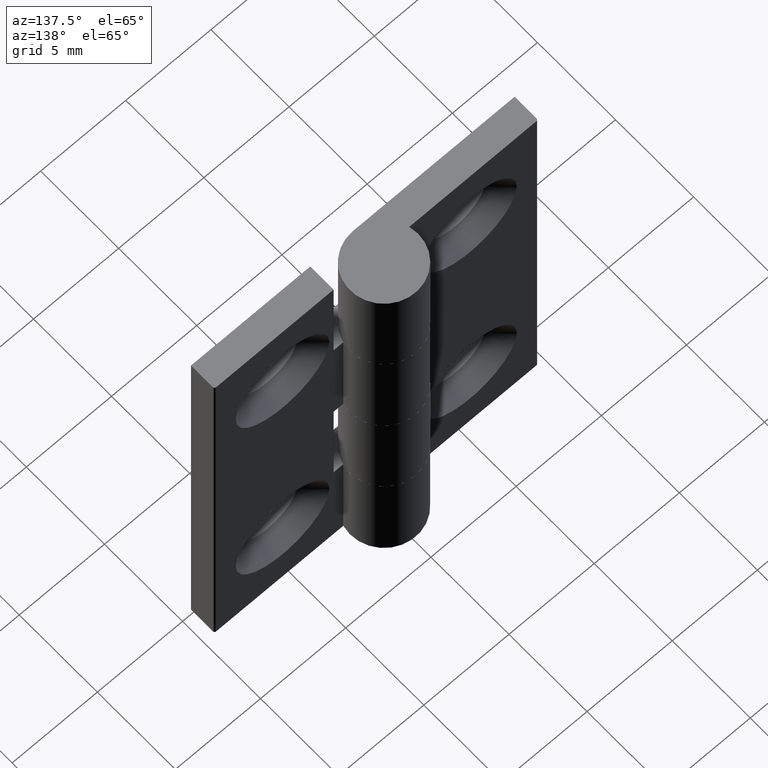
[diagram: clean part render]
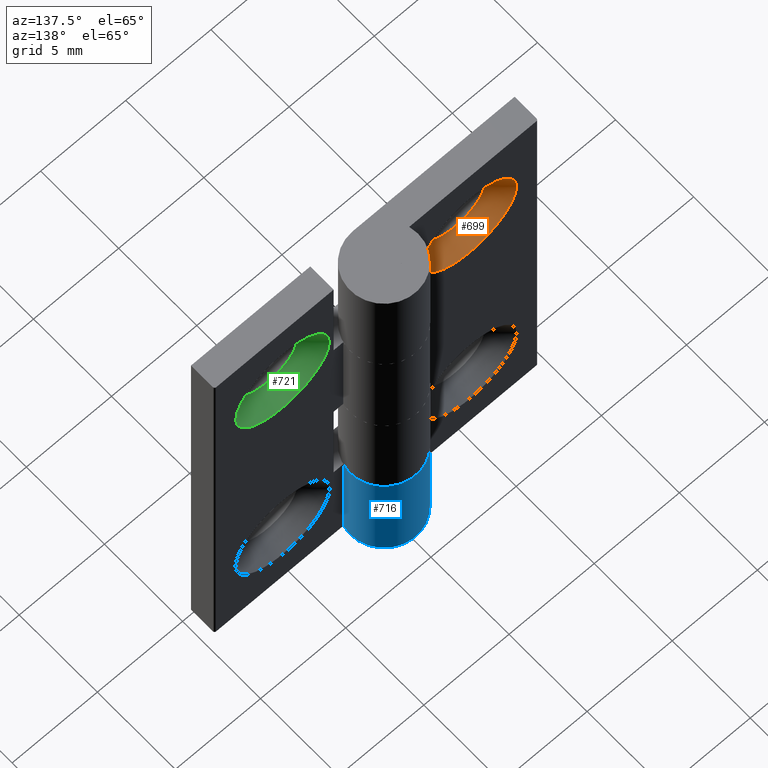
[diagram: same view with three faces highlighted in distinct colors, each labeled with its STEP entity id]
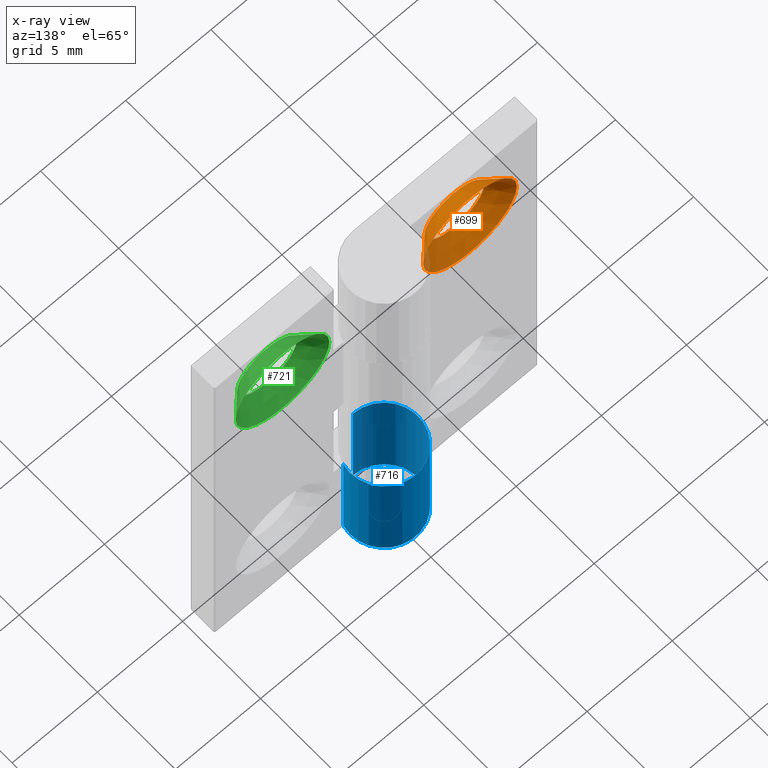
[diagram: x-ray of the same camera — body ghosted, the three highlighted faces saturated]
A machine part, auxiliary view with three faces highlighted in distinct colors.
The next image is the same camera in x-ray (body ghosted, the three faces saturated) — at least one of them is partly hidden behind the body in this view.
Their STEP definitions:

[orange] entity #699 — the highlighted conical surface has half-angle 45 deg.
#35=CONICAL_SURFACE('',#755,2.25,45.);
#60=FACE_BOUND('',#176,.T.);
#89=CIRCLE('',#745,2.75);
#94=CIRCLE('',#756,1.75);
#128=FACE_OUTER_BOUND('',#175,.T.);
#175=EDGE_LOOP('',(#544));
#176=EDGE_LOOP('',(#545));
#356=VERTEX_POINT('',#1084);
#362=VERTEX_POINT('',#1106);
#427=EDGE_CURVE('',#356,#356,#89,.T.);
#437=EDGE_CURVE('',#362,#362,#94,.T.);
#544=ORIENTED_EDGE('',*,*,#427,.F.);
#545=ORIENTED_EDGE('',*,*,#437,.F.);
#699=ADVANCED_FACE('',(#128,#60),#35,.F.);
#745=AXIS2_PLACEMENT_3D('',#1085,#859,#860);
#755=AXIS2_PLACEMENT_3D('',#1105,#884,#885);
#756=AXIS2_PLACEMENT_3D('',#1107,#886,#887);
#859=DIRECTION('center_axis',(0.,-1.,0.));
#860=DIRECTION('ref_axis',(1.,0.,0.));
#884=DIRECTION('center_axis',(0.,1.,0.));
#885=DIRECTION('ref_axis',(1.,0.,0.));
#886=DIRECTION('center_axis',(0.,1.,0.));
#887=DIRECTION('ref_axis',(1.,0.,0.));
#1084=CARTESIAN_POINT('',(-2.75,1.5,7.5));
#1085=CARTESIAN_POINT('Origin',(-5.5,1.5,7.5));
#1105=CARTESIAN_POINT('Origin',(-5.5,0.999999999999999,7.5));
#1106=CARTESIAN_POINT('',(-3.75,0.499999999999999,7.5));
#1107=CARTESIAN_POINT('Origin',(-5.5,0.500000000000003,7.5));

[blue] entity #716 — the highlighted cylindrical surface (partial cylindrical patch) has radius 2 mm, axis along (0, 0, 1).
#47=CYLINDRICAL_SURFACE('',#788,2.);
#105=CIRCLE('',#782,2.);
#109=CIRCLE('',#789,2.);
#145=FACE_OUTER_BOUND('',#205,.T.);
#205=EDGE_LOOP('',(#624,#625,#626,#627));
#277=LINE('',#1191,#331);
#279=LINE('',#1200,#333);
#331=VECTOR('',#971,6.3);
#333=VECTOR('',#981,6.3);
#386=VERTEX_POINT('',#1175);
#388=VERTEX_POINT('',#1178);
#391=VERTEX_POINT('',#1189);
#394=VERTEX_POINT('',#1198);
#468=EDGE_CURVE('',#388,#386,#105,.T.);
#475=EDGE_CURVE('',#386,#391,#277,.T.);
#479=EDGE_CURVE('',#394,#391,#109,.T.);
#480=EDGE_CURVE('',#394,#388,#279,.T.);
#624=ORIENTED_EDGE('',*,*,#468,.T.);
#625=ORIENTED_EDGE('',*,*,#475,.T.);
#626=ORIENTED_EDGE('',*,*,#479,.F.);
#627=ORIENTED_EDGE('',*,*,#480,.T.);
#716=ADVANCED_FACE('',(#145),#47,.T.);
#782=AXIS2_PLACEMENT_3D('',#1179,#958,#959);
#788=AXIS2_PLACEMENT_3D('',#1197,#977,#978);
#789=AXIS2_PLACEMENT_3D('',#1199,#979,#980);
#958=DIRECTION('center_axis',(0.,0.,-1.));
#959=DIRECTION('ref_axis',(-1.,0.,0.));
#971=DIRECTION('',(0.,0.,-1.));
#977=DIRECTION('center_axis',(0.,0.,1.));
#978=DIRECTION('ref_axis',(-1.,0.,0.));
#979=DIRECTION('center_axis',(0.,0.,-1.));
#980=DIRECTION('ref_axis',(-1.,0.,0.));
#981=DIRECTION('',(0.,0.,1.));
#1175=CARTESIAN_POINT('',(1.9364916731037,1.5,-6.2));
#1178=CARTESIAN_POINT('',(-2.46519032881566E-31,0.,-6.2));
#1179=CARTESIAN_POINT('Origin',(-3.33066907387547E-15,2.,-6.2));
#1189=CARTESIAN_POINT('',(1.9364916731037,1.5,-12.5));
#1191=CARTESIAN_POINT('',(1.9364916731037,1.5,0.));
#1197=CARTESIAN_POINT('Origin',(-3.33066907387547E-15,2.,0.));
#1198=CARTESIAN_POINT('',(0.,0.,-12.5));
#1199=CARTESIAN_POINT('Origin',(-3.33066907387547E-15,2.,-12.5));
#1200=CARTESIAN_POINT('',(-2.46519032881566E-31,0.,0.));

[green] entity #721 — the highlighted conical surface has half-angle 45 deg.
#38=CONICAL_SURFACE('',#797,2.25,45.);
#78=FACE_BOUND('',#216,.T.);
#107=CIRCLE('',#786,2.75);
#113=CIRCLE('',#798,1.75);
#150=FACE_OUTER_BOUND('',#215,.T.);
#215=EDGE_LOOP('',(#646));
#216=EDGE_LOOP('',(#647));
#392=VERTEX_POINT('',#1193);
#398=VERTEX_POINT('',#1214);
#477=EDGE_CURVE('',#392,#392,#107,.T.);
#486=EDGE_CURVE('',#398,#398,#113,.T.);
#646=ORIENTED_EDGE('',*,*,#477,.F.);
#647=ORIENTED_EDGE('',*,*,#486,.F.);
#721=ADVANCED_FACE('',(#150,#78),#38,.F.);
#786=AXIS2_PLACEMENT_3D('',#1194,#973,#974);
#797=AXIS2_PLACEMENT_3D('',#1213,#998,#999);
#798=AXIS2_PLACEMENT_3D('',#1215,#1000,#1001);
#973=DIRECTION('center_axis',(1.1686558153949E-16,-1.,0.));
#974=DIRECTION('ref_axis',(1.,1.1686558153949E-16,0.));
#998=DIRECTION('center_axis',(-1.1686558153949E-16,1.,0.));
#999=DIRECTION('ref_axis',(1.,1.1686558153949E-16,0.));
#1000=DIRECTION('center_axis',(-1.1686558153949E-16,1.,0.));
#1001=DIRECTION('ref_axis',(1.,1.1686558153949E-16,0.));
#1193=CARTESIAN_POINT('',(8.25,1.5,7.5));
#1194=CARTESIAN_POINT('Origin',(5.5,1.5,7.5));
#1213=CARTESIAN_POINT('Origin',(5.5,1.,7.5));
#1214=CARTESIAN_POINT('',(7.25,0.5,7.5));
#1215=CARTESIAN_POINT('Origin',(5.5,0.500000000000003,7.5));